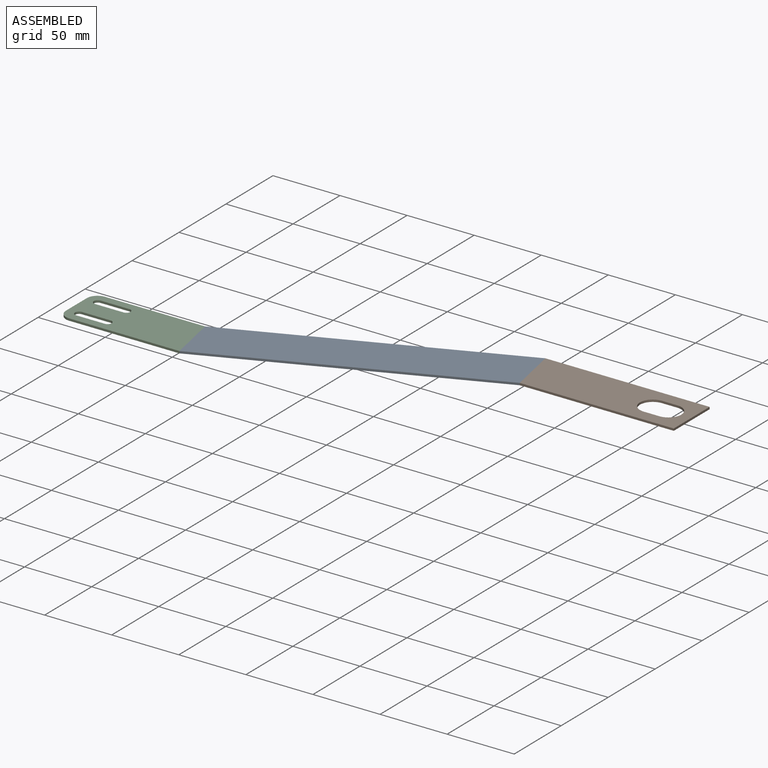
[diagram: assembled view]
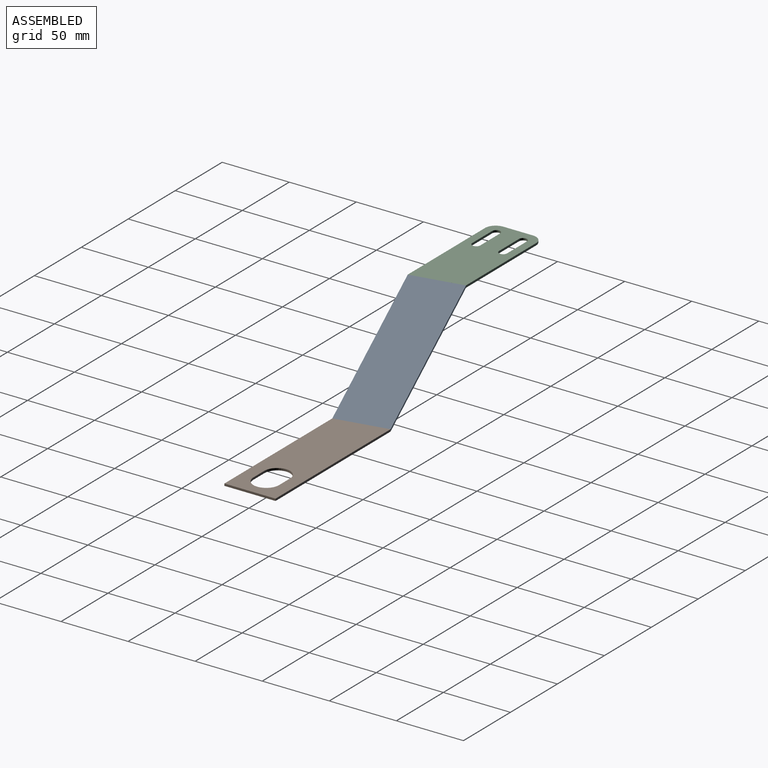
[diagram: assembled view, second angle]
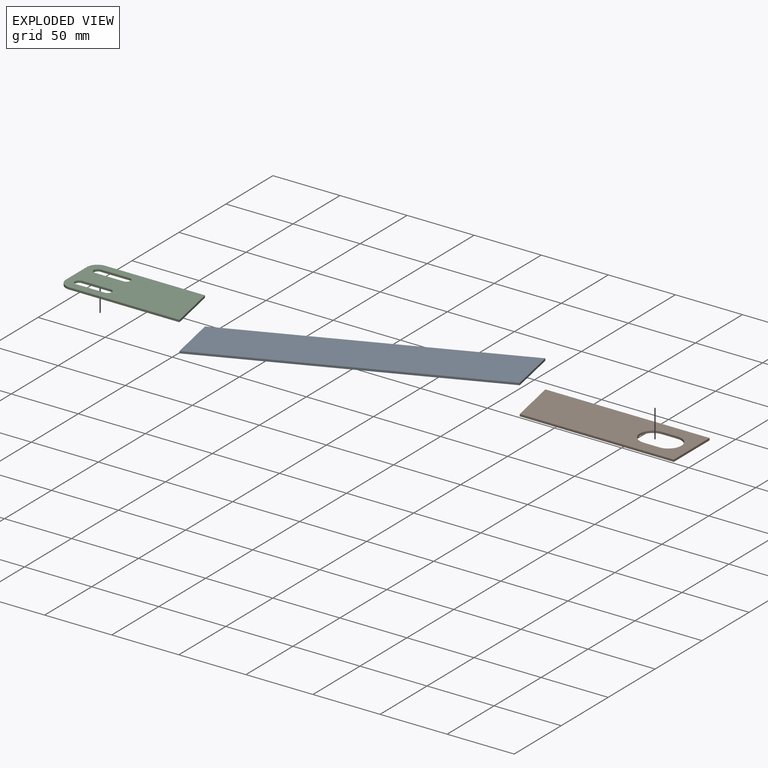
[diagram: exploded view]
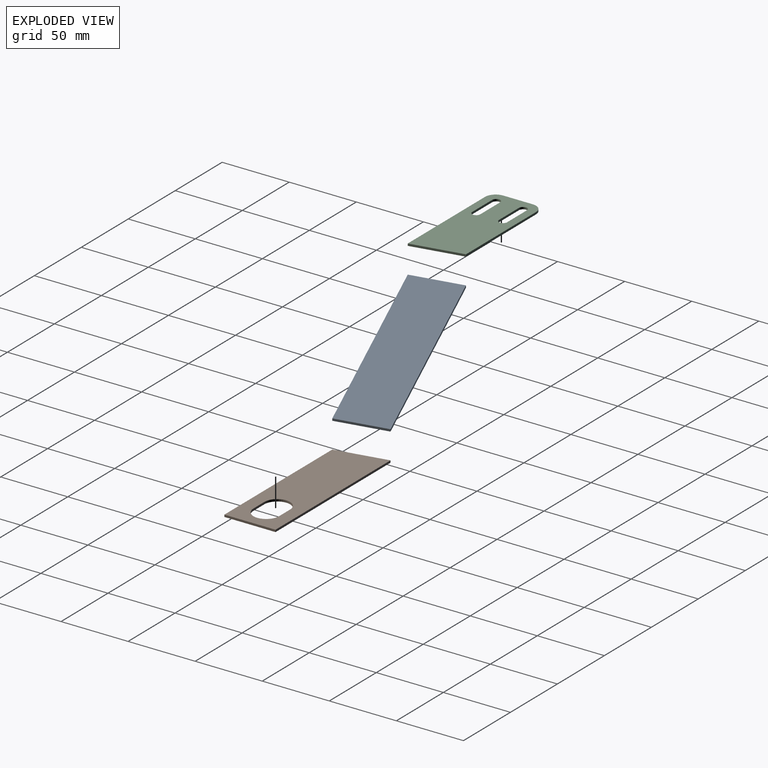
[diagram: exploded view, second angle]
ASSEMBLY  parts=3 mates=4
PART A: 6 faces, bbox 220.4x38.1x1.6 mm
  f0: plane 212.84x1.59mm, normal (0,1,0), area 337.9mm2, adj f1,f3,f4,f5
  f1: plane 38.1x7.58mm, normal (-0.98,0.2,0), area 61.7mm2, adj f0,f2,f4,f5
  f2: plane 212.84x1.59mm, normal (0,-1,0), area 337.9mm2, adj f1,f3,f4,f5
  f3: plane 38.1x7.58mm, normal (0.98,-0.2,0), area 61.7mm2, adj f0,f2,f4,f5
  f4: plane 220.42x38.1mm, normal (0,0,1), area 8109.2mm2, adj f0,f1,f2,f3
  f5: plane 220.42x38.1mm, normal (0,0,-1), area 8109.2mm2, adj f0,f1,f2,f3
PART B: 10 faces, bbox 122.4x38.1x1.6 mm
  f0: cylinder r=9.6mm len=19.2mm, axis (0,0,-1), area 47.9mm2, adj f1,f7,f8,f9
  f1: plane 11.65x1.59mm, normal (0,1,0), area 18.5mm2, adj f0,f2,f8,f9
  f2: cylinder r=9.6mm len=19.2mm, axis (0,0,-1), area 47.9mm2, adj f1,f7,f8,f9
  f3: plane 38.1x1.59mm, normal (1,0,0), area 60.5mm2, adj f4,f6,f8,f9
  f4: plane 122.4x1.59mm, normal (0,1,0), area 194.3mm2, adj f3,f5,f8,f9
  f5: plane 38.1x7.58mm, normal (-0.98,-0.2,0), area 61.7mm2, adj f4,f6,f8,f9
  f6: plane 114.82x1.59mm, normal (0,-1,0), area 182.3mm2, adj f3,f5,f8,f9
  f7: plane 11.65x1.59mm, normal (0,-1,0), area 18.5mm2, adj f0,f2,f8,f9
  f8: plane 122.4x38.1mm, normal (0,0,1), area 4005.9mm2, adj f0,f1,f2,f3,f4,f5,f6,f7
  f9: plane 122.4x38.1mm, normal (0,0,-1), area 4005.9mm2, adj f0,f1,f2,f3,f4,f5,f6,f7
PART C: 16 faces, bbox 90.2x38.1x1.6 mm
  f0: plane 74.62x1.59mm, normal (0,1,0), area 118.5mm2, adj f1,f13,f14,f15
  f1: cylinder r=8mm len=8mm, axis (0,0,-1), area 19.9mm2, adj f0,f2,f14,f15
  f2: plane 22.1x1.59mm, normal (-1,0,0), area 35.1mm2, adj f1,f3,f14,f15
  f3: cylinder r=8mm len=8mm, axis (0,0,-1), area 19.9mm2, adj f2,f4,f14,f15
  f4: plane 82.2x1.59mm, normal (0,-1,0), area 130.5mm2, adj f3,f13,f14,f15
  f5: cylinder r=3mm len=6mm, axis (0,0,-1), area 15mm2, adj f6,f11,f14,f15
  f6: plane 21.28x1.59mm, normal (0,-1,0), area 33.8mm2, adj f5,f7,f14,f15
  f7: cylinder r=3mm len=6mm, axis (0,0,-1), area 15mm2, adj f6,f11,f14,f15
  f8: cylinder r=3mm len=6mm, axis (0,0,-1), area 15mm2, adj f9,f12,f14,f15
  f9: plane 21.28x1.59mm, normal (0,-1,0), area 33.8mm2, adj f8,f10,f14,f15
  f10: cylinder r=3mm len=6mm, axis (0,0,-1), area 15mm2, adj f9,f12,f14,f15
  f11: plane 21.28x1.59mm, normal (0,1,0), area 33.8mm2, adj f5,f7,f14,f15
  f12: plane 21.28x1.59mm, normal (0,1,0), area 33.8mm2, adj f8,f10,f14,f15
  f13: plane 38.1x7.58mm, normal (0.98,0.2,0), area 61.7mm2, adj f0,f4,f14,f15
  f14: plane 90.2x38.1mm, normal (0,0,1), area 2952.9mm2, adj f0,f1,f2,f3,f4,f5,f6,f7
  f15: plane 90.2x38.1mm, normal (0,0,-1), area 2952.9mm2, adj f0,f1,f2,f3,f4,f5,f6,f7
PLACE A rot(axis=(0,0,1),22.5deg) t=(133.23,26.5,30.41)mm
PLACE B t=(250.37,58.65,30.41)mm
PLACE C t=(-30.4,-19.91,30.41)mm
MATE planar C.f14 <-> A.f4  axis (0,0,1) through (-23.93,-23.76,32)mm
MATE planar B.f8 <-> A.f4  axis (0,0,1) through (267.66,58.24,32)mm
MATE planar A.f1 <-> C.f13  axis (-0.98,-0.2,0) through (16.37,-23.44,31.21)mm
MATE planar A.f3 <-> B.f5  axis (0.98,0.2,0) through (213.01,58.01,31.21)mm
